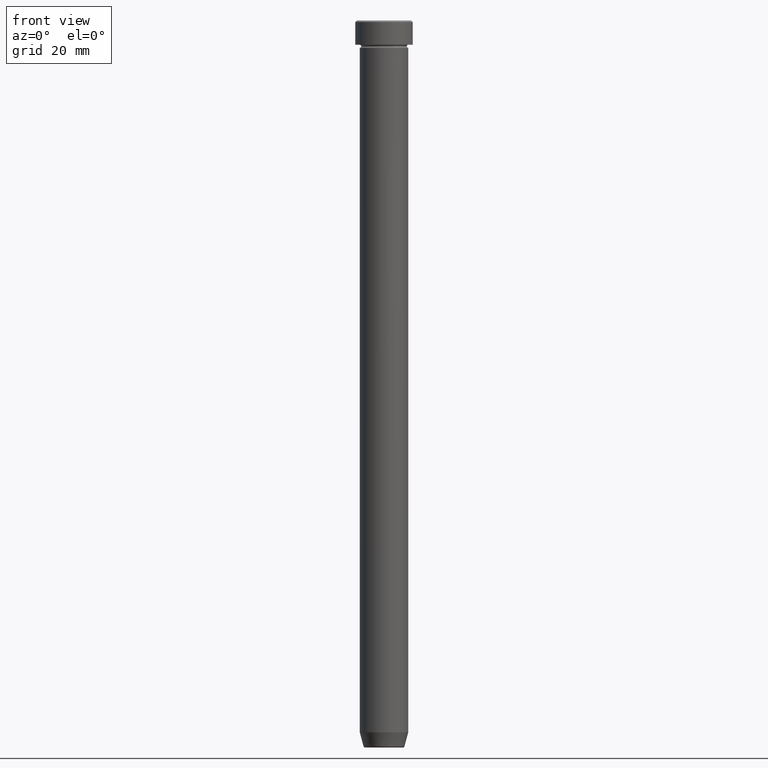
[diagram: clean part render]
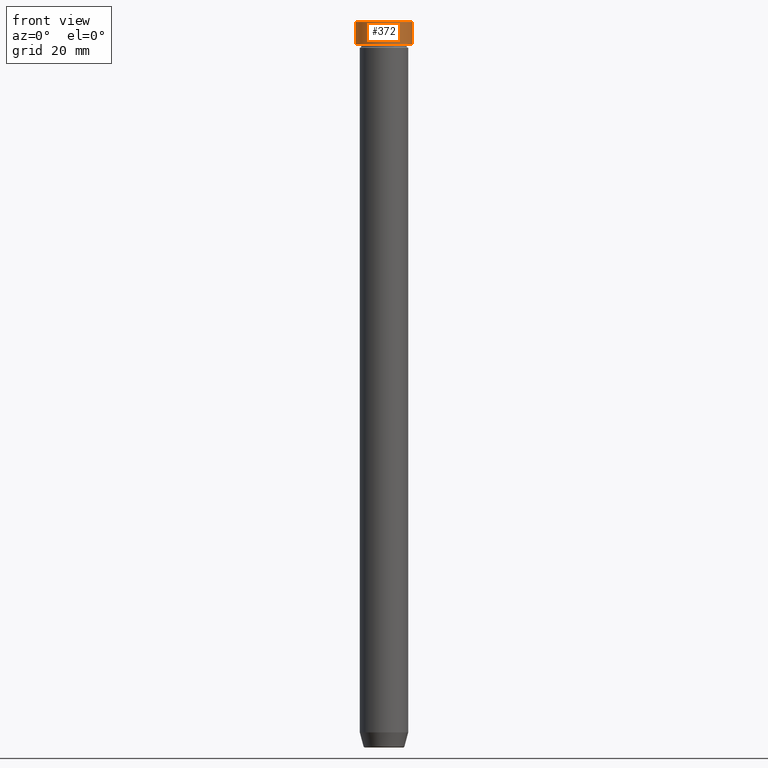
[diagram: same view with one face highlighted and labeled with its STEP entity id]
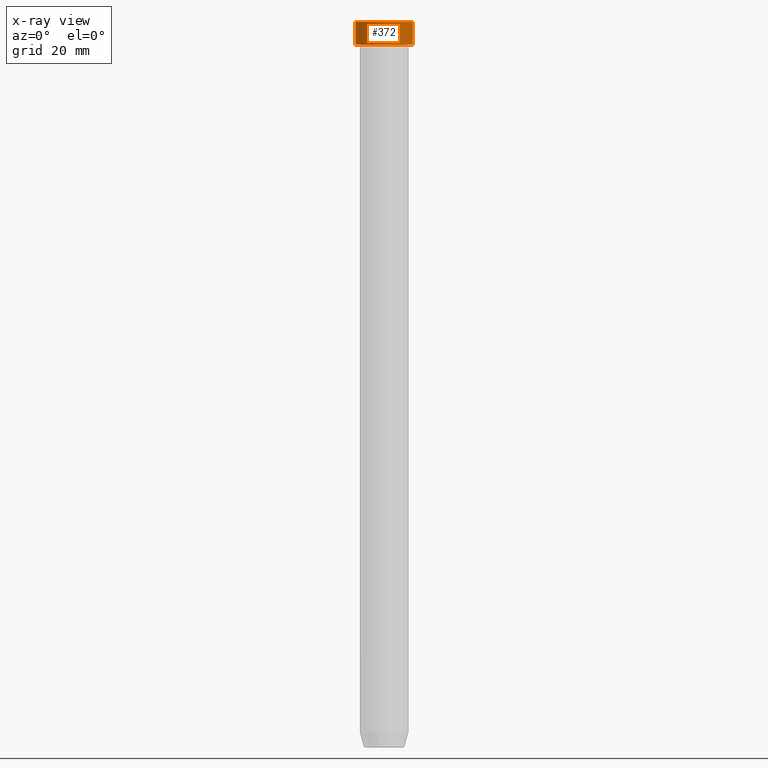
[diagram: x-ray of the same camera — body ghosted, the highlighted face saturated]
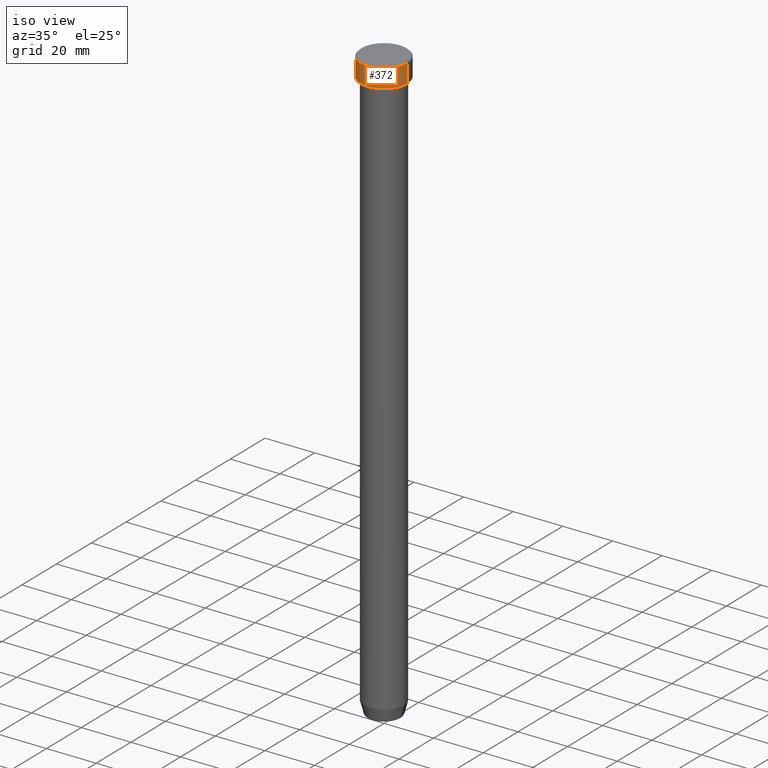
[diagram: same view with one face highlighted and labeled with its STEP entity id]
A machine part, front view. The second image highlights one B-rep face of the part: STEP entity #372.
The next image is the same camera in x-ray: the body ghosted, the highlighted face saturated — about 0% of this face is hidden behind the body in this view.
A second angle (iso view) of the same face is appended — the face is thin or edge-on in the first view.
In plain terms, the highlighted cylindrical surface (edge-blend (fillet) strip) has radius 9.5 mm, axis along (-0, -0, 1).
Its self-contained STEP definition (entity closure, byte-faithful):
#19 = DIRECTION ( 'NONE',  ( -0.000000000000000000, -0.000000000000000000, 1.000000000000000000 ) ) ;
#23 = CARTESIAN_POINT ( 'NONE',  ( -9.500000000000000000, 1.163414459189985485E-15, -8.000000000000000000 ) ) ;
#24 = EDGE_CURVE ( 'NONE', #451, #228, #591, .T. ) ;
#40 = LINE ( 'NONE', #452, #414 ) ;
#55 = DIRECTION ( 'NONE',  ( 1.000000000000000000, 0.000000000000000000, 0.000000000000000000 ) ) ;
#63 = EDGE_CURVE ( 'NONE', #200, #228, #40, .T. ) ;
#74 = CARTESIAN_POINT ( 'NONE',  ( 0.000000000000000000, 0.000000000000000000, 0.000000000000000000 ) ) ;
#82 = CARTESIAN_POINT ( 'NONE',  ( -9.500000000000000000, 1.163414459189985485E-15, -0.4999999999999968914 ) ) ;
#121 = LINE ( 'NONE', #590, #419 ) ;
#129 = CARTESIAN_POINT ( 'NONE',  ( 0.000000000000000000, 0.000000000000000000, -0.4999999999999968914 ) ) ;
#130 = DIRECTION ( 'NONE',  ( -0.000000000000000000, -0.000000000000000000, 1.000000000000000000 ) ) ;
#138 = ORIENTED_EDGE ( 'NONE', *, *, #599, .T. ) ;
#174 = ORIENTED_EDGE ( 'NONE', *, *, #24, .T. ) ;
#200 = VERTEX_POINT ( 'NONE', #23 ) ;
#214 = DIRECTION ( 'NONE',  ( -0.000000000000000000, -0.000000000000000000, 1.000000000000000000 ) ) ;
#222 = AXIS2_PLACEMENT_3D ( 'NONE', #74, #19, #245 ) ;
#223 = DIRECTION ( 'NONE',  ( 0.000000000000000000, 0.000000000000000000, -1.000000000000000000 ) ) ;
#228 = VERTEX_POINT ( 'NONE', #82 ) ;
#234 = DIRECTION ( 'NONE',  ( -0.000000000000000000, -0.000000000000000000, 1.000000000000000000 ) ) ;
#245 = DIRECTION ( 'NONE',  ( 1.000000000000000000, 0.000000000000000000, 0.000000000000000000 ) ) ;
#248 = CARTESIAN_POINT ( 'NONE',  ( 9.500000000000000000, 0.000000000000000000, -0.4999999999999968914 ) ) ;
#258 = CIRCLE ( 'NONE', #440, 9.500000000000000000 ) ;
#262 = EDGE_CURVE ( 'NONE', #281, #451, #121, .T. ) ;
#269 = DIRECTION ( 'NONE',  ( 1.000000000000000000, 0.000000000000000000, 0.000000000000000000 ) ) ;
#281 = VERTEX_POINT ( 'NONE', #302 ) ;
#302 = CARTESIAN_POINT ( 'NONE',  ( 9.500000000000000000, 0.000000000000000000, -8.000000000000000000 ) ) ;
#337 = FACE_OUTER_BOUND ( 'NONE', #433, .T. ) ;
#372 = ADVANCED_FACE ( 'NONE', ( #337 ), #518, .T. ) ;
#399 = ORIENTED_EDGE ( 'NONE', *, *, #262, .T. ) ;
#414 = VECTOR ( 'NONE', #214, 1000.000000000000000 ) ;
#419 = VECTOR ( 'NONE', #130, 1000.000000000000000 ) ;
#423 = CARTESIAN_POINT ( 'NONE',  ( 0.000000000000000000, 0.000000000000000000, -8.000000000000000000 ) ) ;
#433 = EDGE_LOOP ( 'NONE', ( #445, #138, #399, #174 ) ) ;
#440 = AXIS2_PLACEMENT_3D ( 'NONE', #423, #234, #55 ) ;
#445 = ORIENTED_EDGE ( 'NONE', *, *, #63, .F. ) ;
#451 = VERTEX_POINT ( 'NONE', #248 ) ;
#452 = CARTESIAN_POINT ( 'NONE',  ( -9.500000000000000000, 1.163414459189985485E-15, 0.000000000000000000 ) ) ;
#518 = CYLINDRICAL_SURFACE ( 'NONE', #222, 9.500000000000000000 ) ;
#559 = AXIS2_PLACEMENT_3D ( 'NONE', #129, #223, #269 ) ;
#590 = CARTESIAN_POINT ( 'NONE',  ( 9.500000000000000000, 0.000000000000000000, 0.000000000000000000 ) ) ;
#591 = CIRCLE ( 'NONE', #559, 9.500000000000000000 ) ;
#599 = EDGE_CURVE ( 'NONE', #200, #281, #258, .T. ) ;